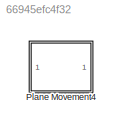
MODEL slx_66945efc4f32
KIND library
CONFIG AbsTol = auto
CONFIG EnableMultiTasking = off
CONFIG FixedStep = auto
CONFIG MaxStep = auto
CONFIG MinStep = auto
CONFIG RelTol = 1e-3
CONFIG SampleTimeConstraint = Unconstrained
CONFIG SolverName = VariableStepAuto
CONFIG StartTime = 0.0
CONFIG StopTime = 10.0
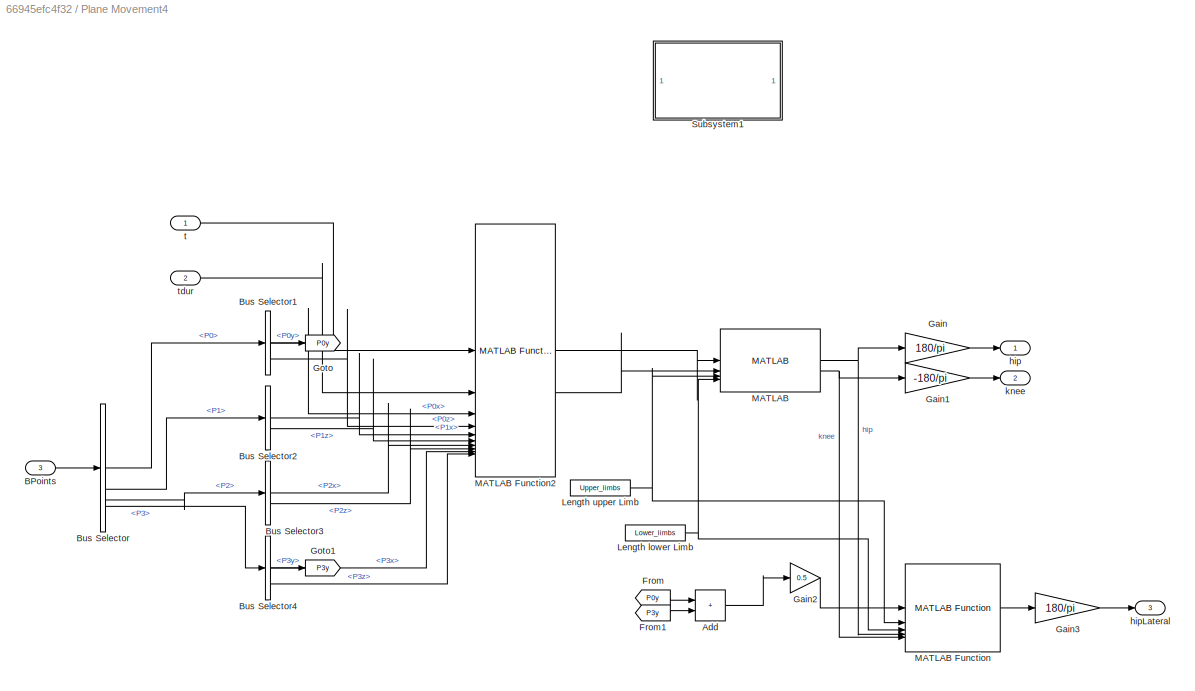
BLOCK [SubSystem] Plane Movement4
BLOCK [Sum] Plane Movement4/Add
  IconShape = rectangular
BLOCK [Inport] Plane Movement4/BPoints
  Port = 3
BLOCK [BusSelector] Plane Movement4/Bus Selector
  OutputSignals = P0,P1,P2,P3
BLOCK [BusSelector] Plane Movement4/Bus Selector1
  OutputSignals = P0x,P0y,P0z
BLOCK [BusSelector] Plane Movement4/Bus Selector2
  OutputSignals = P1x,P1z
BLOCK [BusSelector] Plane Movement4/Bus Selector3
  OutputSignals = P2x,P2z
BLOCK [BusSelector] Plane Movement4/Bus Selector4
  OutputSignals = P3x,P3y,P3z
BLOCK [From] Plane Movement4/From
  GotoTag = P0y
BLOCK [From] Plane Movement4/From1
  GotoTag = P3y
BLOCK [Gain] Plane Movement4/Gain
  Gain = 180/pi
BLOCK [Gain] Plane Movement4/Gain1
  Gain = -180/pi
BLOCK [Gain] Plane Movement4/Gain2
  Gain = 0.5
BLOCK [Gain] Plane Movement4/Gain3
  Gain = 180/pi
BLOCK [Goto] Plane Movement4/Goto
  GotoTag = P0y
BLOCK [Goto] Plane Movement4/Goto1
  GotoTag = P3y
BLOCK [Constant] Plane Movement4/Length lower Limb
  Value = Lower_limbs
BLOCK [Constant] Plane Movement4/Length upper Limb
  Value = Upper_limbs
BLOCK [Reference] Plane Movement4/MATLAB  REF=functionAngles/MATLAB
  SourceBlock = functionAngles/MATLAB
  SourceType = SubSystem
BLOCK [Reference] Plane Movement4/MATLAB Function  REF=functionAngles/MATLAB Function
  SourceBlock = functionAngles/MATLAB Function
  SourceType = SubSystem
BLOCK [Reference] Plane Movement4/MATLAB Function2  REF=functionBezier_trot_forward/MATLAB Function2
  SourceBlock = functionBezier_trot_forward/MATLAB Function2
  SourceType = SubSystem
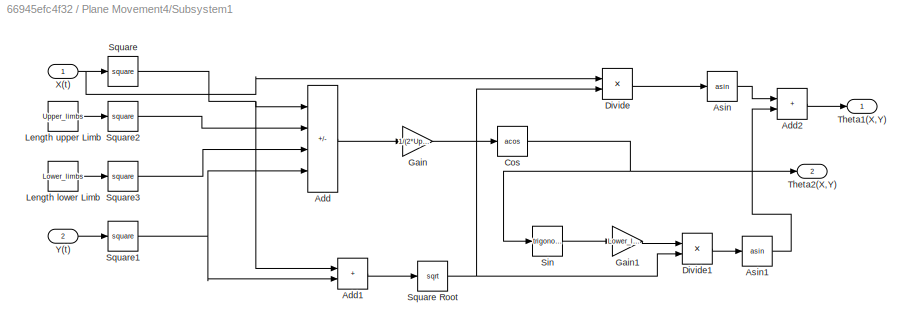
BLOCK [SubSystem] Plane Movement4/Subsystem1
  Commented = on
BLOCK [Sum] Plane Movement4/Subsystem1/Add
  IconShape = rectangular
  Inputs = +--+
BLOCK [Sum] Plane Movement4/Subsystem1/Add1
  IconShape = rectangular
BLOCK [Sum] Plane Movement4/Subsystem1/Add2
  IconShape = rectangular
BLOCK [Trigonometry] Plane Movement4/Subsystem1/Asin
  Operator = asin
BLOCK [Trigonometry] Plane Movement4/Subsystem1/Asin1
  Operator = asin
BLOCK [Trigonometry] Plane Movement4/Subsystem1/Cos
  Operator = acos
BLOCK [Product] Plane Movement4/Subsystem1/Divide
  Inputs = */
BLOCK [Product] Plane Movement4/Subsystem1/Divide1
  Inputs = */
BLOCK [Gain] Plane Movement4/Subsystem1/Gain
  Gain = 1/(2*Upper_limbs*Lower_limbs)
BLOCK [Gain] Plane Movement4/Subsystem1/Gain1
  Gain = Lower_limbs
BLOCK [Constant] Plane Movement4/Subsystem1/Length lower Limb
  Value = Lower_limbs
BLOCK [Constant] Plane Movement4/Subsystem1/Length upper Limb
  Value = Upper_limbs
BLOCK [Trigonometry] Plane Movement4/Subsystem1/Sin
BLOCK [Math] Plane Movement4/Subsystem1/Square
  Operator = square
BLOCK [Sqrt] Plane Movement4/Subsystem1/Square Root
BLOCK [Math] Plane Movement4/Subsystem1/Square1
  Operator = square
BLOCK [Math] Plane Movement4/Subsystem1/Square2
  Operator = square
BLOCK [Math] Plane Movement4/Subsystem1/Square3
  Operator = square
BLOCK [Outport] Plane Movement4/Subsystem1/Theta1(X,Y)
BLOCK [Outport] Plane Movement4/Subsystem1/Theta2(X,Y)
  Port = 2
BLOCK [Inport] Plane Movement4/Subsystem1/X(t)
BLOCK [Inport] Plane Movement4/Subsystem1/Y(t)
  Port = 2
BLOCK [Outport] Plane Movement4/hip
BLOCK [Outport] Plane Movement4/hipLateral
  Port = 3
BLOCK [Outport] Plane Movement4/knee
  Port = 2
BLOCK [Inport] Plane Movement4/t
BLOCK [Inport] Plane Movement4/tdur
  Port = 2
LINE Plane Movement4/Add:1 -> Plane Movement4/Gain2:1
LINE Plane Movement4/BPoints:1 -> Plane Movement4/Bus Selector:1
LINE Plane Movement4/Bus Selector1:1 -> Plane Movement4/MATLAB Function2:3
LINE Plane Movement4/Bus Selector1:2 -> Plane Movement4/Goto:1
LINE Plane Movement4/Bus Selector1:3 -> Plane Movement4/MATLAB Function2:4
LINE Plane Movement4/Bus Selector2:1 -> Plane Movement4/MATLAB Function2:5
LINE Plane Movement4/Bus Selector2:2 -> Plane Movement4/MATLAB Function2:6
LINE Plane Movement4/Bus Selector3:1 -> Plane Movement4/MATLAB Function2:7
LINE Plane Movement4/Bus Selector3:2 -> Plane Movement4/MATLAB Function2:8
LINE Plane Movement4/Bus Selector4:1 -> Plane Movement4/MATLAB Function2:9
LINE Plane Movement4/Bus Selector4:2 -> Plane Movement4/Goto1:1
LINE Plane Movement4/Bus Selector4:3 -> Plane Movement4/MATLAB Function2:10
LINE Plane Movement4/Bus Selector:1 -> Plane Movement4/Bus Selector1:1
LINE Plane Movement4/Bus Selector:2 -> Plane Movement4/Bus Selector2:1
LINE Plane Movement4/Bus Selector:3 -> Plane Movement4/Bus Selector3:1
LINE Plane Movement4/Bus Selector:4 -> Plane Movement4/Bus Selector4:1
LINE Plane Movement4/From1:1 -> Plane Movement4/Add:2
LINE Plane Movement4/From:1 -> Plane Movement4/Add:1
LINE Plane Movement4/Gain1:1 -> Plane Movement4/knee:1
LINE Plane Movement4/Gain2:1 -> Plane Movement4/MATLAB Function:1
LINE Plane Movement4/Gain3:1 -> Plane Movement4/hipLateral:1
LINE Plane Movement4/Gain:1 -> Plane Movement4/hip:1
NET Plane Movement4/Length lower Limb:1 -> Plane Movement4/MATLAB Function:3, Plane Movement4/MATLAB:4
NET Plane Movement4/Length upper Limb:1 -> Plane Movement4/MATLAB Function:2, Plane Movement4/MATLAB:3
LINE Plane Movement4/MATLAB Function2:1 -> Plane Movement4/MATLAB:1
LINE Plane Movement4/MATLAB Function2:2 -> Plane Movement4/MATLAB:2
LINE Plane Movement4/MATLAB Function:1 -> Plane Movement4/Gain3:1
NET Plane Movement4/MATLAB:1 -> Plane Movement4/Gain:1, Plane Movement4/MATLAB Function:4
NET Plane Movement4/MATLAB:2 -> Plane Movement4/Gain1:1, Plane Movement4/MATLAB Function:5
LINE Plane Movement4/Subsystem1/Add1:1 -> Plane Movement4/Subsystem1/Square Root:1
LINE Plane Movement4/Subsystem1/Add2:1 -> Plane Movement4/Subsystem1/Theta1(X,Y):1
LINE Plane Movement4/Subsystem1/Add:1 -> Plane Movement4/Subsystem1/Gain:1
LINE Plane Movement4/Subsystem1/Asin1:1 -> Plane Movement4/Subsystem1/Add2:2
LINE Plane Movement4/Subsystem1/Asin:1 -> Plane Movement4/Subsystem1/Add2:1
NET Plane Movement4/Subsystem1/Cos:1 -> Plane Movement4/Subsystem1/Sin:1, Plane Movement4/Subsystem1/Theta2(X,Y):1
LINE Plane Movement4/Subsystem1/Divide1:1 -> Plane Movement4/Subsystem1/Asin1:1
LINE Plane Movement4/Subsystem1/Divide:1 -> Plane Movement4/Subsystem1/Asin:1
LINE Plane Movement4/Subsystem1/Gain1:1 -> Plane Movement4/Subsystem1/Divide1:1
LINE Plane Movement4/Subsystem1/Gain:1 -> Plane Movement4/Subsystem1/Cos:1
LINE Plane Movement4/Subsystem1/Length lower Limb:1 -> Plane Movement4/Subsystem1/Square3:1
LINE Plane Movement4/Subsystem1/Length upper Limb:1 -> Plane Movement4/Subsystem1/Square2:1
LINE Plane Movement4/Subsystem1/Sin:1 -> Plane Movement4/Subsystem1/Gain1:1
NET Plane Movement4/Subsystem1/Square Root:1 -> Plane Movement4/Subsystem1/Divide1:2, Plane Movement4/Subsystem1/Divide:2
NET Plane Movement4/Subsystem1/Square1:1 -> Plane Movement4/Subsystem1/Add1:2, Plane Movement4/Subsystem1/Add:4
LINE Plane Movement4/Subsystem1/Square2:1 -> Plane Movement4/Subsystem1/Add:2
LINE Plane Movement4/Subsystem1/Square3:1 -> Plane Movement4/Subsystem1/Add:3
NET Plane Movement4/Subsystem1/Square:1 -> Plane Movement4/Subsystem1/Add1:1, Plane Movement4/Subsystem1/Add:1
NET Plane Movement4/Subsystem1/X(t):1 -> Plane Movement4/Subsystem1/Divide:1, Plane Movement4/Subsystem1/Square:1
LINE Plane Movement4/Subsystem1/Y(t):1 -> Plane Movement4/Subsystem1/Square1:1
LINE Plane Movement4/t:1 -> Plane Movement4/MATLAB Function2:1
LINE Plane Movement4/tdur:1 -> Plane Movement4/MATLAB Function2:2
note: NET lines group one-source signal fan-out (src -> all destinations, sorted); 1:1 wires keep LINE
